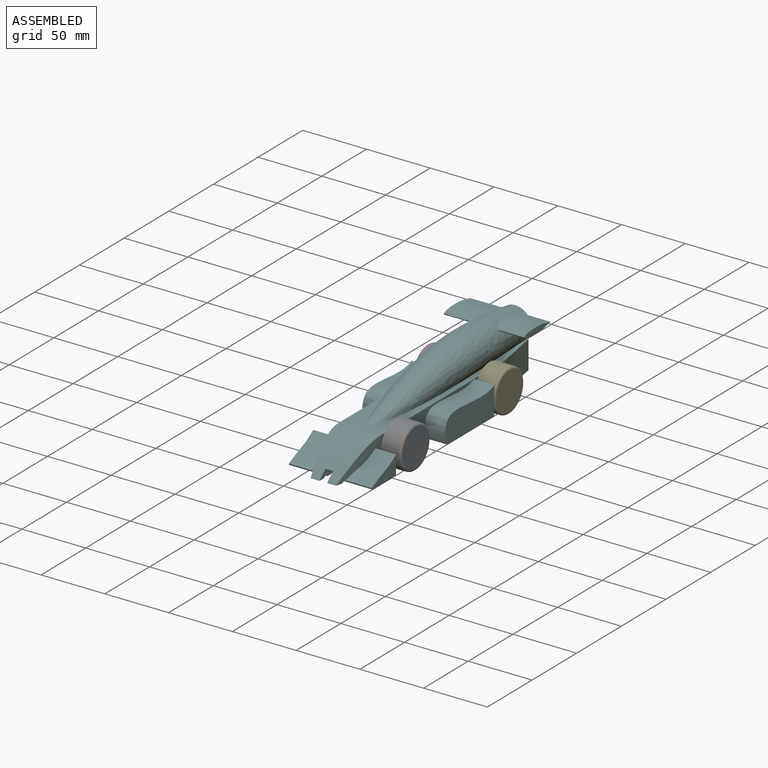
[diagram: assembled view]
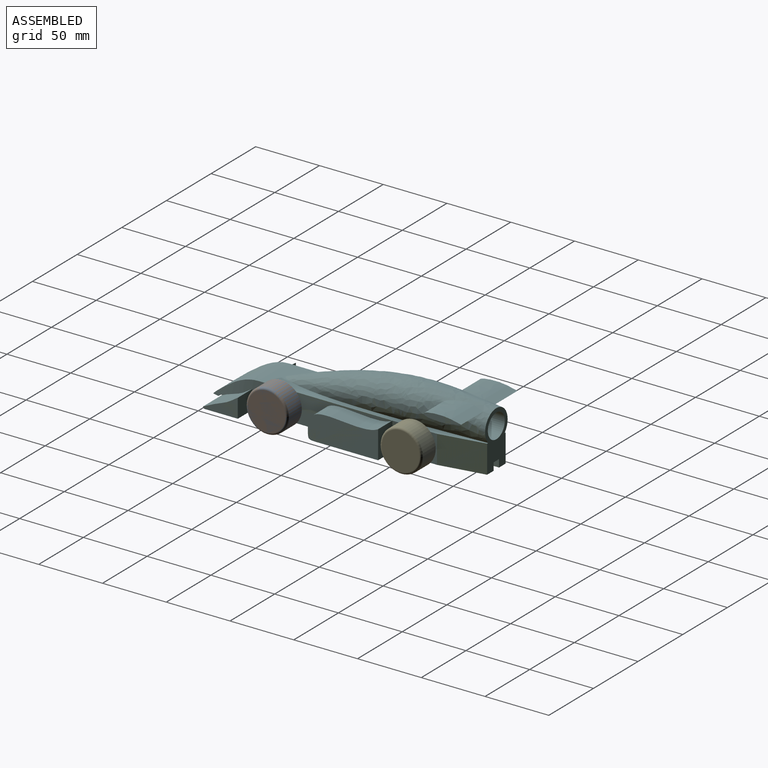
[diagram: assembled view, second angle]
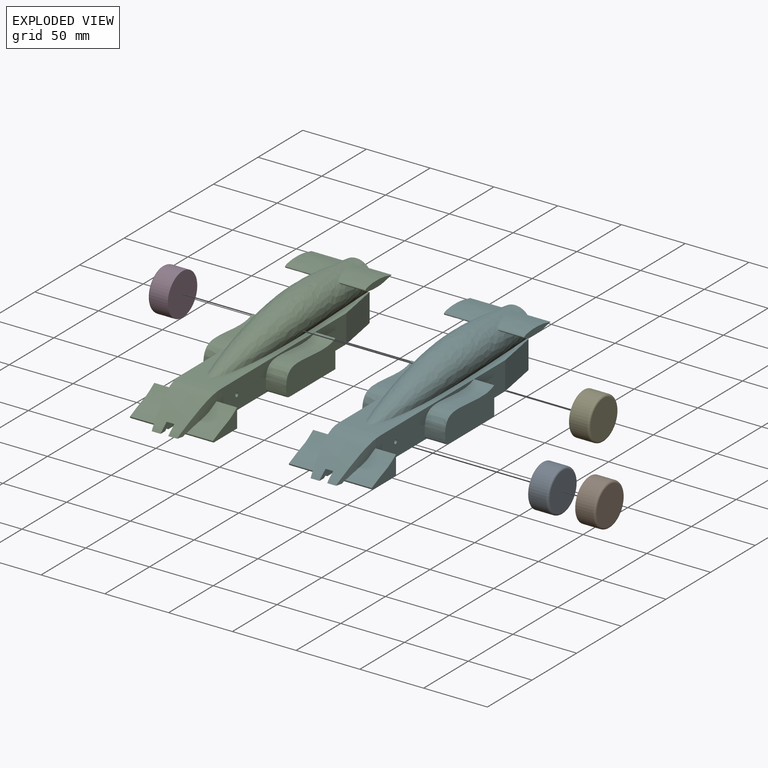
[diagram: exploded view]
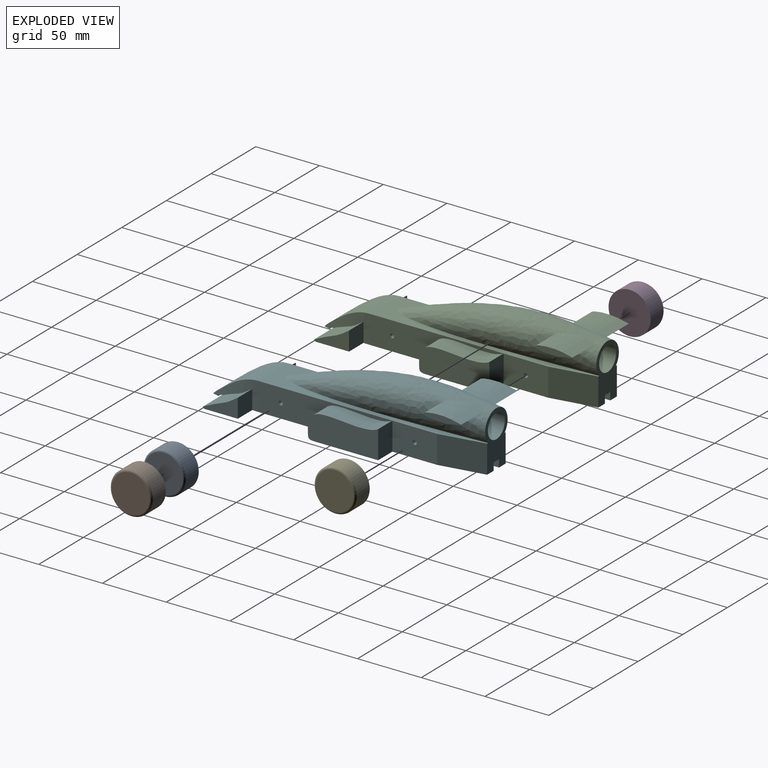
[diagram: exploded view, second angle]
ASSEMBLY  parts=6 mates=2
PART A: 4 faces, bbox 15.7x35.7x35.7 mm
  f0: cylinder r=16.5mm len=33mm, axis (-1,0,0), area 1451.4mm2, adj f2,f3
  f1: plane 29.62x29.62mm, normal (1,0,0), area 689.1mm2, adj f3
  f2: plane 33x33mm, normal (-1,0,0), area 855.3mm2, adj f0
  f3: torus R=14.81mm, axis (1,0,0), area 265mm2, adj f0,f1
PART B: same geometry as A
PART C: 54 faces, bbox 65.4x215.4x54.4 mm
  f0: plane 35x22mm, normal (-1,0,0), area 762.1mm2, adj f2,f13,f14,f28,f34
  f1: plane 35x22mm, normal (1,0,0), area 762.1mm2, adj f3,f14,f18,f19,f34
  f2: plane 205.91x29.5mm, normal (0,0,-1), area 3918.2mm2, adj f0,f4,f12,f13,f17,f26,f27,f28
  f3: plane 205.91x29.5mm, normal (0,0,-1), area 3886.2mm2, adj f1,f7,f12,f16,f18,f19,f20,f23
  f4: plane 27.64x14.92mm, normal (-1,0,0), area 207.6mm2, adj f2,f5,f45,f50
  f5: extruded ~27.17x20.61mm, area 545.5mm2, adj f4,f30,f45,f50
  f6: extruded ~27.17x20.61mm, area 545.5mm2, adj f7,f29,f46,f53
  f7: plane 27.64x14.92mm, normal (1,0,0), area 207.6mm2, adj f3,f6,f46,f53
  f8: plane 8.21x5mm, normal (0,0,-1), area 38mm2, adj f30,f31,f48,f51
  f9: bspline ~40x33mm, area 1180.7mm2, adj f10,f14,f29,f30,f31,f47,f48,f49
  f10: bspline ~16.74x2.83mm, area 29.3mm2, adj f9,f15,f29,f47
  f11: cylinder r=9.5mm len=55mm, axis (0,1,0), area 3181.1mm2, adj f12,f32,f44
  f12: plane 43.31x25.29mm, normal (0,1,0), area 584.6mm2, adj f2,f3,f11,f13,f14,f19,f43,f47
  f13: plane 35x22mm, normal (-0.98,0.17,0), area 781.9mm2, adj f0,f2,f12,f14
  f14: plane 175x33mm, normal (0,0,1), area 2058.8mm2, adj f0,f1,f9,f12,f13,f19,f23,f27
  f15: plane 8.21x5mm, normal (0,0,-1), area 38mm2, adj f10,f29,f47,f52
  f16: plane 55.15x23.98mm, normal (1,0,0), area 1082.9mm2, adj f3,f18,f20,f21,f22
  f17: plane 55.23x24.02mm, normal (-1,0,0), area 1088.8mm2, adj f2,f24,f25,f26,f28
  f18: plane 22x16mm, normal (0,1,0), area 352mm2, adj f1,f3,f16,f22
  f19: plane 35x22mm, normal (0.98,0.17,0), area 781.9mm2, adj f1,f3,f12,f14
  f20: extruded ~16x5mm, area 121.7mm2, adj f3,f16,f21,f23
  f21: extruded ~16x5.6mm, area 89.7mm2, adj f16,f20,f22,f23
  f22: extruded ~55x16mm, area 989.3mm2, adj f16,f18,f21,f23
  f23: plane 105x23.98mm, normal (1,0,0), area 1219mm2, adj f3,f14,f20,f21,f22,f29,f33
  f24: extruded ~55x16mm, area 988.2mm2, adj f17,f25,f27,f28
  f25: extruded ~16x6.66mm, area 106.6mm2, adj f17,f24,f26,f27
  f26: extruded ~16x3mm, area 80.2mm2, adj f2,f17,f25,f27
  f27: plane 105x24.02mm, normal (-1,0,0), area 1213.5mm2, adj f2,f14,f24,f25,f26,f30,f33
  f28: plane 22x16mm, normal (0,1,0), area 352mm2, adj f0,f2,f17,f24
  f29: bspline ~40x22mm, area 352.1mm2, adj f3,f6,f9,f10,f15,f23,f46,f52
  f30: bspline ~40x22mm, area 352.1mm2, adj f2,f5,f8,f9,f27,f31,f45,f50
  f31: bspline ~14.54x2.83mm, area 29.3mm2, adj f8,f9,f30,f48
  f32: plane 19x19mm, normal (0,1,0), area 283.5mm2, adj f11
  f33: cylinder r=1.59mm len=33mm, axis (1,0,0), area 329.2mm2, adj f23,f27
  f34: cylinder r=1.59mm len=33mm, axis (1,0,0), area 329.2mm2, adj f0,f1
  f35: plane 29.5x5mm, normal (-1,0,0), area 103.7mm2, adj f36,f37,f38
  f36: extruded ~26.2x21.43mm, area 979.1mm2, adj f35,f37,f38,f43
  f37: plane 25.03x8.48mm, normal (0,0.21,-0.98), area 188.2mm2, adj f35,f36,f38,f43
  f38: plane 26.08x8.18mm, normal (0,0.21,0.98), area 208.5mm2, adj f35,f36,f37,f43
  f39: plane 26.08x8.18mm, normal (0,0.21,0.98), area 208.5mm2, adj f40,f41,f42,f43
  f40: extruded ~26.2x21.43mm, area 978.8mm2, adj f39,f41,f42,f43
  f41: plane 25.03x8.48mm, normal (0,0.21,-0.98), area 188.2mm2, adj f39,f40,f42,f43
  f42: plane 29.5x5mm, normal (1,0,0), area 103.7mm2, adj f39,f40,f41
  f43: bspline ~202x47.02mm, area 8526.3mm2, adj f12,f14,f36,f37,f38,f39,f40,f41
  f44: extruded ~17.35x7.16mm, area 100.3mm2, adj f11
  f45: plane 16.16x14.94mm, normal (0,1,0), area 240.9mm2, adj f2,f4,f5,f30
  f46: plane 16.16x14.94mm, normal (0,1,0), area 240.9mm2, adj f3,f6,f7,f29
  f47: plane 215.02x6.02mm, normal (-1,0,0), area 1267.4mm2, adj f3,f9,f10,f12,f15,f49,f52,f53
  f48: plane 215.02x6.02mm, normal (1,0,0), area 1267.4mm2, adj f2,f8,f9,f12,f31,f49,f50,f51
  f49: plane 208.16x6mm, normal (0,0,-1), area 1249mm2, adj f9,f12,f47,f48
  f50: cylinder r=1.27mm len=29.5mm, axis (1,0,0), area 75.9mm2, adj f2,f4,f5,f30,f48,f51
  f51: cylinder r=20mm len=9.04mm, axis (1,0,0), area 36.5mm2, adj f8,f30,f48,f50
  f52: cylinder r=20mm len=9.04mm, axis (1,0,0), area 36.5mm2, adj f15,f29,f47,f53
  f53: cylinder r=1.27mm len=29.5mm, axis (1,0,0), area 75.9mm2, adj f3,f6,f7,f29,f47,f52
PART D: same geometry as A
PART E: same geometry as A
PART F: same geometry as C
PLACE A t=(45.11,-38.63,-8.48)mm
PLACE B rot(axis=(-1,0,0),67.6deg) t=(45.11,-38.63,-8.48)mm
PLACE C t=(28.61,6.37,5.52)mm
PLACE D rot(axis=(0,-1,0),180deg) t=(12.11,66.37,-8.48)mm
PLACE E t=(45.11,66.37,-8.48)mm
PLACE F t=(28.61,6.37,5.52)mm
MATE revolute D.f0 <-> F.f34  axis (1,0,0) through (12.11,66.37,-8.48)mm
MATE revolute E.f0 <-> F.f34  axis (-1,0,0) through (45.11,66.37,-8.48)mm
